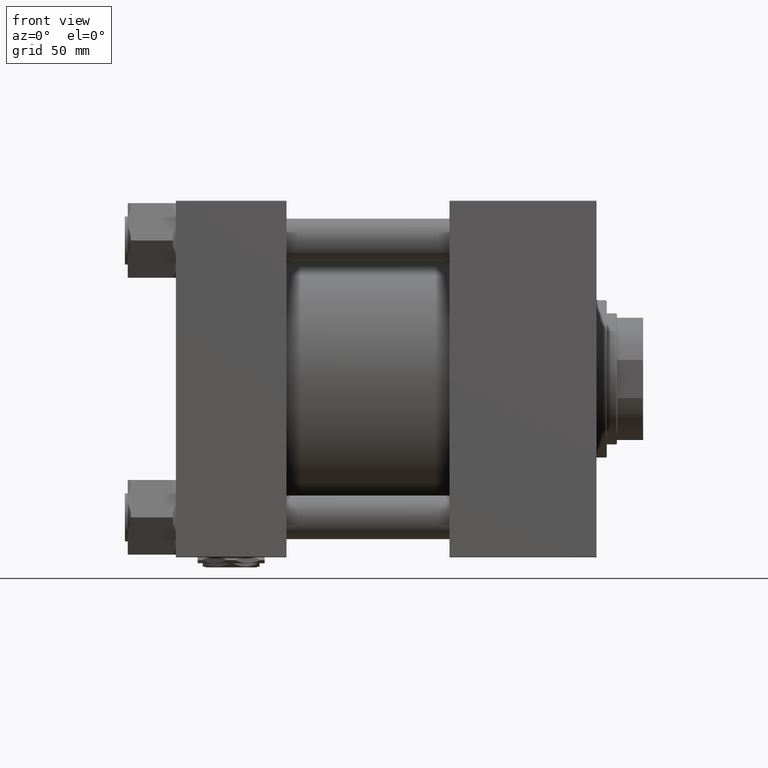
[diagram: clean part render]
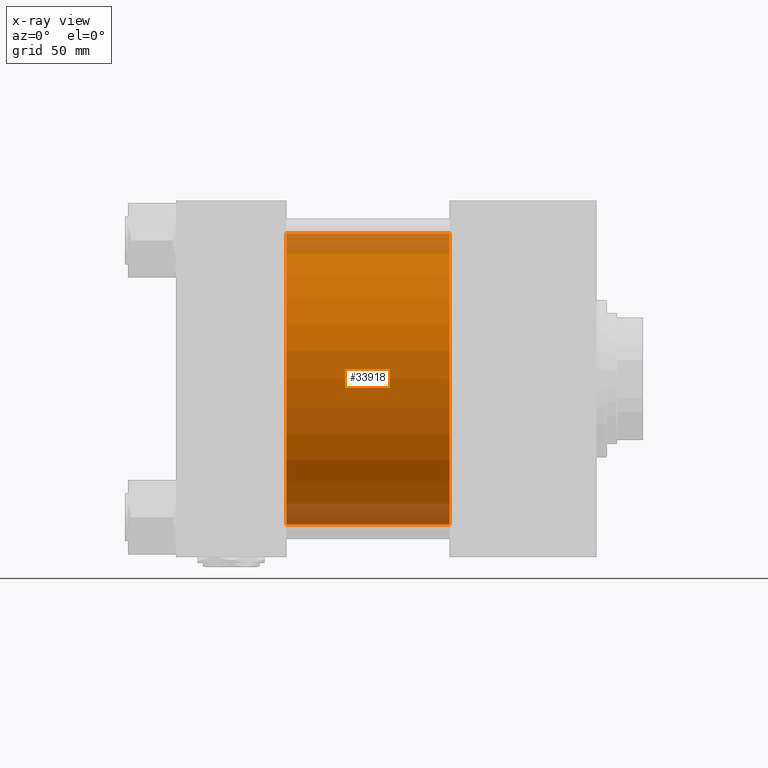
[diagram: x-ray — body ghosted, one internal face saturated and labeled with its STEP entity id]
A machine part, front view, then the same camera in x-ray: the body is ghosted and one INTERNAL B-rep face — a face not visible from any outside direction — is saturated and labeled: STEP entity #33918.
In plain terms, the highlighted cylindrical surface (partial cylindrical patch) has radius 100 mm, axis along (-1, -0, -0).
Its self-contained STEP definition (entity closure, byte-faithful):
#315 = DIRECTION ( 'NONE',  ( -1.000000000000000000, -0.000000000000000000, -0.000000000000000000 ) ) ;
#2942 = CARTESIAN_POINT ( 'NONE',  ( 76.00000000000000000, 9.644382777508321529E-15, -100.0000000000000000 ) ) ;
#4318 = DIRECTION ( 'NONE',  ( -1.000000000000000000, -0.000000000000000000, -0.000000000000000000 ) ) ;
#4688 = CARTESIAN_POINT ( 'NONE',  ( 188.0000000000000000, -2.602085213965210642E-15, 0.000000000000000000 ) ) ;
#8415 = CYLINDRICAL_SURFACE ( 'NONE', #8742, 100.0000000000000000 ) ;
#8742 = AXIS2_PLACEMENT_3D ( 'NONE', #4688, #36840, #21408 ) ;
#8808 = CARTESIAN_POINT ( 'NONE',  ( 188.0000000000000000, 9.644382777508321529E-15, -100.0000000000000000 ) ) ;
#16666 = CIRCLE ( 'NONE', #30214, 100.0000000000000000 ) ;
#19966 = DIRECTION ( 'NONE',  ( 0.000000000000000000, 0.000000000000000000, -1.000000000000000000 ) ) ;
#20890 = ORIENTED_EDGE ( 'NONE', *, *, #23477, .F. ) ;
#21408 = DIRECTION ( 'NONE',  ( 0.000000000000000000, 0.000000000000000000, 1.000000000000000000 ) ) ;
#23477 = EDGE_CURVE ( 'NONE', #40093, #45726, #48938, .T. ) ;
#25088 = VECTOR ( 'NONE', #4318, 1000.000000000000000 ) ;
#26208 = VERTEX_POINT ( 'NONE', #26718 ) ;
#26718 = CARTESIAN_POINT ( 'NONE',  ( 188.0000000000000000, 9.644382777508321529E-15, -100.0000000000000000 ) ) ;
#28212 = CIRCLE ( 'NONE', #39231, 100.0000000000000000 ) ;
#28767 = VECTOR ( 'NONE', #315, 1000.000000000000000 ) ;
#30214 = AXIS2_PLACEMENT_3D ( 'NONE', #51867, #48658, #19966 ) ;
#31562 = CARTESIAN_POINT ( 'NONE',  ( 188.0000000000000000, -2.602085213965210642E-15, 100.0000000000000000 ) ) ;
#32142 = VERTEX_POINT ( 'NONE', #2942 ) ;
#32450 = EDGE_CURVE ( 'NONE', #40093, #26208, #28212, .T. ) ;
#32992 = LINE ( 'NONE', #8808, #25088 ) ;
#33918 = ADVANCED_FACE ( 'NONE', ( #44804 ), #8415, .F. ) ;
#34834 = ORIENTED_EDGE ( 'NONE', *, *, #32450, .T. ) ;
#36840 = DIRECTION ( 'NONE',  ( -1.000000000000000000, -0.000000000000000000, -0.000000000000000000 ) ) ;
#39231 = AXIS2_PLACEMENT_3D ( 'NONE', #47970, #48762, #44762 ) ;
#39413 = EDGE_LOOP ( 'NONE', ( #34834, #51088, #41696, #20890 ) ) ;
#39477 = EDGE_CURVE ( 'NONE', #26208, #32142, #32992, .T. ) ;
#40093 = VERTEX_POINT ( 'NONE', #31562 ) ;
#40173 = CARTESIAN_POINT ( 'NONE',  ( 188.0000000000000000, -2.602085213965210642E-15, 100.0000000000000000 ) ) ;
#41696 = ORIENTED_EDGE ( 'NONE', *, *, #42115, .F. ) ;
#42115 = EDGE_CURVE ( 'NONE', #45726, #32142, #16666, .T. ) ;
#44762 = DIRECTION ( 'NONE',  ( 0.000000000000000000, 0.000000000000000000, -1.000000000000000000 ) ) ;
#44804 = FACE_OUTER_BOUND ( 'NONE', #39413, .T. ) ;
#45726 = VERTEX_POINT ( 'NONE', #48975 ) ;
#47970 = CARTESIAN_POINT ( 'NONE',  ( 188.0000000000000000, -2.602085213965210642E-15, 0.000000000000000000 ) ) ;
#48658 = DIRECTION ( 'NONE',  ( 1.000000000000000000, 0.000000000000000000, 0.000000000000000000 ) ) ;
#48762 = DIRECTION ( 'NONE',  ( 1.000000000000000000, 0.000000000000000000, 0.000000000000000000 ) ) ;
#48938 = LINE ( 'NONE', #40173, #28767 ) ;
#48975 = CARTESIAN_POINT ( 'NONE',  ( 76.00000000000000000, -2.602085213965210642E-15, 100.0000000000000000 ) ) ;
#51088 = ORIENTED_EDGE ( 'NONE', *, *, #39477, .T. ) ;
#51867 = CARTESIAN_POINT ( 'NONE',  ( 76.00000000000000000, -2.602085213965210642E-15, 0.000000000000000000 ) ) ;